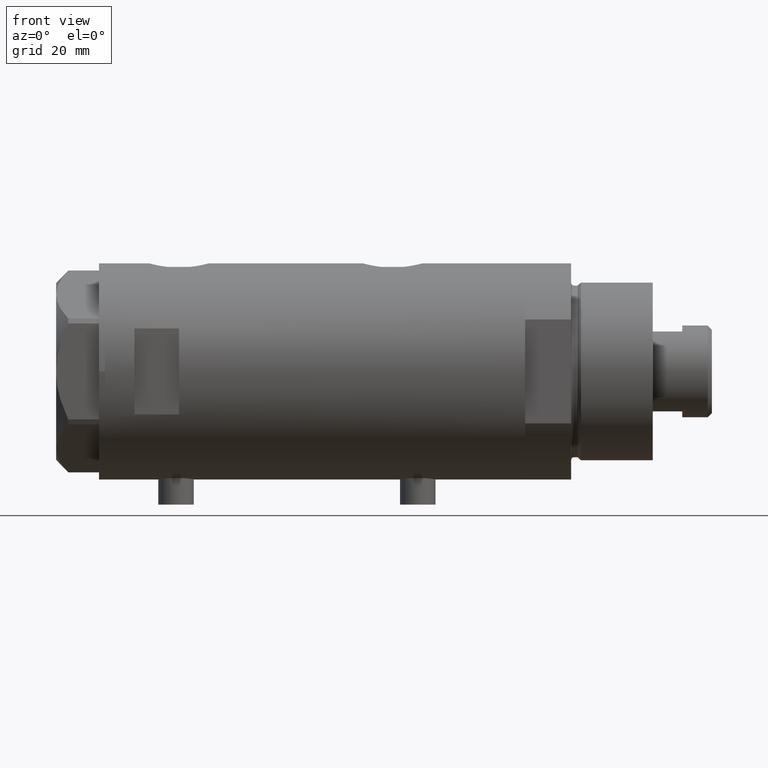
[diagram: clean part render]
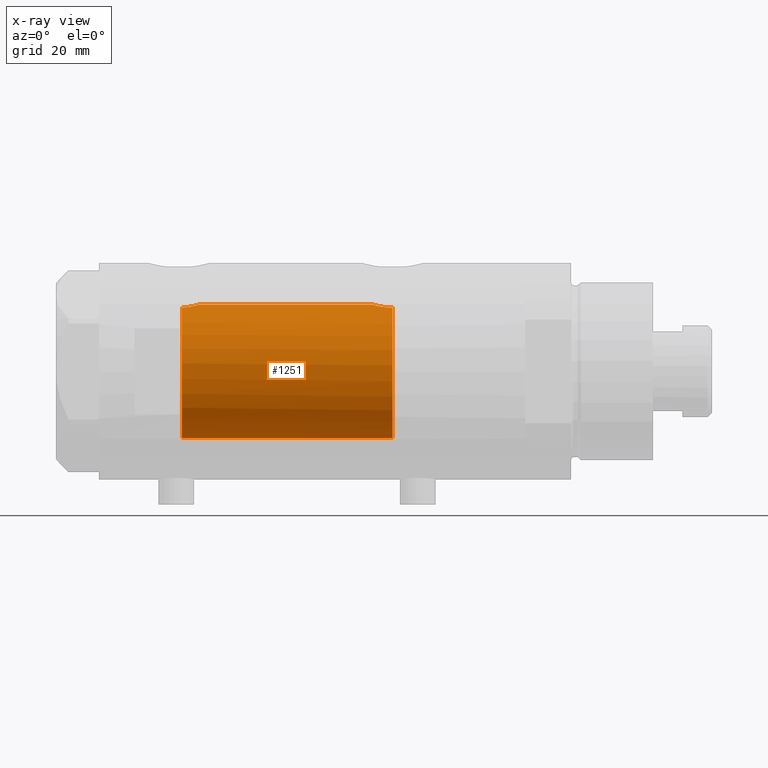
[diagram: x-ray — body ghosted, one internal face saturated and labeled with its STEP entity id]
A machine part, front view, then the same camera in x-ray: the body is ghosted and one INTERNAL B-rep face — a face not visible from any outside direction — is saturated and labeled: STEP entity #1251.
In plain terms, the highlighted cylindrical surface (partial cylindrical patch) has radius 22.5 mm, axis along (1, 0, -0).
Its self-contained STEP definition (entity closure, byte-faithful):
#11 = CARTESIAN_POINT ( 'NONE',  ( 22.41838729966077182, -1.923945741267794718, 39.67953118595340811 ) ) ;
#55 = CARTESIAN_POINT ( 'NONE',  ( 21.80246547822149239, -5.562416037700068649, 42.43858628205821049 ) ) ;
#100 = FACE_OUTER_BOUND ( 'NONE', #4734, .T. ) ;
#121 = EDGE_CURVE ( 'NONE', #3836, #2532, #902, .T. ) ;
#122 = CYLINDRICAL_SURFACE ( 'NONE', #4314, 22.50000000000000355 ) ;
#178 = CARTESIAN_POINT ( 'NONE',  ( 21.85557760450273079, -5.347779544816341435, -22.33530284772028551 ) ) ;
#199 = CARTESIAN_POINT ( 'NONE',  ( -22.47718698759301148, -1.044180983668934415, 44.68786394352321878 ) ) ;
#212 = EDGE_CURVE ( 'NONE', #1202, #2532, #3261, .T. ) ;
#216 = VECTOR ( 'NONE', #1555, 1000.000000000000000 ) ;
#344 = CARTESIAN_POINT ( 'NONE',  ( 21.55747828655794507, -6.444296957919024571, 44.58952509780952056 ) ) ;
#372 = CARTESIAN_POINT ( 'NONE',  ( 22.45982135096091170, -1.357617207441330409, 39.53364426403783938 ) ) ;
#387 = CARTESIAN_POINT ( 'NONE',  ( -22.50000000000000355, 3.061617244220330846E-16, 44.47499999999999432 ) ) ;
#400 = CARTESIAN_POINT ( 'NONE',  ( 21.58054822171800424, -6.366927345060005905, -24.45902244069208464 ) ) ;
#512 = CARTESIAN_POINT ( 'NONE',  ( 21.76737372098157763, -5.695831585513579931, -22.87347891606892247 ) ) ;
#540 = CARTESIAN_POINT ( 'NONE',  ( -22.50000000000000355, 0.000000000000000000, 70.97499999999998010 ) ) ;
#545 = CARTESIAN_POINT ( 'NONE',  ( 22.49690699366423630, -0.4310528819996874428, -19.60555249859412896 ) ) ;
#550 = VERTEX_POINT ( 'NONE', #387 ) ;
#563 = CARTESIAN_POINT ( 'NONE',  ( -22.44994432064365242, -1.500000000000010658, 44.97500000000000142 ) ) ;
#565 = CARTESIAN_POINT ( 'NONE',  ( 21.79602751566979180, -5.585535159907483838, -22.69020197735673605 ) ) ;
#763 = ORIENTED_EDGE ( 'NONE', *, *, #1005, .F. ) ;
#781 = CARTESIAN_POINT ( 'NONE',  ( 22.50000000000000355, 0.000000000000000000, 39.39499999999999602 ) ) ;
#826 = DIRECTION ( 'NONE',  ( 0.000000000000000000, 0.000000000000000000, -1.000000000000000000 ) ) ;
#872 = CARTESIAN_POINT ( 'NONE',  ( 22.43844456282249666, -1.716722304487074080, -19.80814599255653263 ) ) ;
#902 = CIRCLE ( 'NONE', #1595, 22.50000000000000355 ) ;
#950 = CARTESIAN_POINT ( 'NONE',  ( 22.47508397315213813, -1.079737406574096115, -19.68058251353130927 ) ) ;
#1005 = EDGE_CURVE ( 'NONE', #3836, #550, #3547, .T. ) ;
#1032 = ORIENTED_EDGE ( 'NONE', *, *, #4196, .T. ) ;
#1056 = ORIENTED_EDGE ( 'NONE', *, *, #212, .F. ) ;
#1202 = VERTEX_POINT ( 'NONE', #4039 ) ;
#1251 = ADVANCED_FACE ( 'NONE', ( #100 ), #122, .F. ) ;
#1293 = CARTESIAN_POINT ( 'NONE',  ( 22.25875518649490203, -3.305696985817204059, -20.46958010501983694 ) ) ;
#1326 = CARTESIAN_POINT ( 'NONE',  ( -22.50000000000000711, -0.1337055225816306814, 44.47499999999999432 ) ) ;
#1334 = ORIENTED_EDGE ( 'NONE', *, *, #1926, .T. ) ;
#1555 = DIRECTION ( 'NONE',  ( -0.000000000000000000, -0.000000000000000000, -1.000000000000000000 ) ) ;
#1574 = DIRECTION ( 'NONE',  ( -1.000000000000000000, 0.000000000000000000, 0.000000000000000000 ) ) ;
#1595 = AXIS2_PLACEMENT_3D ( 'NONE', #4480, #3670, #2589 ) ;
#1651 = CARTESIAN_POINT ( 'NONE',  ( 22.48448975507856673, -0.8627579744204257883, -19.64820172378661312 ) ) ;
#1672 = CARTESIAN_POINT ( 'NONE',  ( -22.49055119298212091, -0.6642057183733680592, 44.56115305361895906 ) ) ;
#1737 = CARTESIAN_POINT ( 'NONE',  ( -22.50000000000000355, 0.000000000000000000, -26.17500000000000426 ) ) ;
#1765 = CARTESIAN_POINT ( 'NONE',  ( 21.53958216864941733, -6.503568251352486840, 44.97500000000000142 ) ) ;
#1769 = CIRCLE ( 'NONE', #4471, 22.50000000000000355 ) ;
#1815 = CARTESIAN_POINT ( 'NONE',  ( 22.03004750576871729, -4.584392313773047789, 41.23896497621451118 ) ) ;
#1826 = LINE ( 'NONE', #3312, #3439 ) ;
#1846 = CARTESIAN_POINT ( 'NONE',  ( 22.19872433573121029, -3.673198495424858656, 40.51223143248277836 ) ) ;
#1872 = ORIENTED_EDGE ( 'NONE', *, *, #1953, .F. ) ;
#1890 = CARTESIAN_POINT ( 'NONE',  ( 21.52981735982749711, -6.536420260328986487, -25.30462480407472370 ) ) ;
#1926 = EDGE_CURVE ( 'NONE', #2818, #3657, #1769, .T. ) ;
#1953 = EDGE_CURVE ( 'NONE', #2818, #3091, #2151, .T. ) ;
#2016 = CARTESIAN_POINT ( 'NONE',  ( 21.68753676189997748, -5.992345198295755182, -23.44827232579068266 ) ) ;
#2035 = CARTESIAN_POINT ( 'NONE',  ( -22.46419909496995260, -1.286654073380669949, 44.81499055503548590 ) ) ;
#2151 = B_SPLINE_CURVE_WITH_KNOTS ( 'NONE', 3,
 ( #2592, #4071, #1890, #400, #3370, #2016, #2401, #512, #565, #178, #4217, #3127, #3182, #4597, #4558, #1293, #3157, #4193, #872, #950, #1651, #545, #2737, #2762 ),
 .UNSPECIFIED., .F., .F.,
 ( 4, 2, 2, 2, 2, 2, 2, 2, 2, 2, 2, 4 ),
 ( 0.01034583194474684477, 0.01163831905076681203, 0.01293080615678677929, 0.01357704970979676379, 0.01422329326280675002, 0.01486953681581673452, 0.01551578036882671902, 0.01680826747484669842, 0.01810075458086667782, 0.01939324168688665723, 0.02003948523989664693, 0.02068572879290663316 ),
 .UNSPECIFIED. ) ;
#2183 = CARTESIAN_POINT ( 'NONE',  ( 22.40145249794126059, -2.111617392236897928, 39.73995543481973414 ) ) ;
#2253 = CARTESIAN_POINT ( 'NONE',  ( 21.97180182460413889, -4.853116730831955827, 41.51487939335086708 ) ) ;
#2339 = DIRECTION ( 'NONE',  ( -0.000000000000000000, -0.000000000000000000, -1.000000000000000000 ) ) ;
#2401 = CARTESIAN_POINT ( 'NONE',  ( 21.71318796968428444, -5.899027407341884910, -23.25198536342958988 ) ) ;
#2532 = VERTEX_POINT ( 'NONE', #1765 ) ;
#2570 = CARTESIAN_POINT ( 'NONE',  ( 22.34502592404423993, -2.661921217589553024, 39.94475867852116124 ) ) ;
#2589 = DIRECTION ( 'NONE',  ( 1.000000000000000000, 0.000000000000000000, 0.000000000000000000 ) ) ;
#2592 = CARTESIAN_POINT ( 'NONE',  ( 21.51635656889892800, -6.580000000000002736, -26.17499999999999716 ) ) ;
#2622 = CARTESIAN_POINT ( 'NONE',  ( 22.44752031034920847, -1.547413406105165867, 39.57656217857970660 ) ) ;
#2644 = CARTESIAN_POINT ( 'NONE',  ( 22.48961206562542259, -0.7836756559690483126, 39.43027653274376121 ) ) ;
#2737 = CARTESIAN_POINT ( 'NONE',  ( 22.50000000000000711, -0.2154191524768929167, -19.59499999999999886 ) ) ;
#2762 = CARTESIAN_POINT ( 'NONE',  ( 22.50000000000000355, 8.058593785575293352E-16, -19.59499999999999531 ) ) ;
#2787 = CARTESIAN_POINT ( 'NONE',  ( -22.50000000000000355, 3.061617244220330846E-16, 44.47499999999999432 ) ) ;
#2818 = VERTEX_POINT ( 'NONE', #3188 ) ;
#3011 = CARTESIAN_POINT ( 'NONE',  ( 22.14407575385478566, -3.989443360685410944, 40.73872562971259015 ) ) ;
#3037 = CARTESIAN_POINT ( 'NONE',  ( 22.50000000000000355, 8.058593785575293352E-16, -19.59499999999999531 ) ) ;
#3091 = VERTEX_POINT ( 'NONE', #3037 ) ;
#3127 = CARTESIAN_POINT ( 'NONE',  ( 21.94965745907477839, -4.947937303812826038, -21.83215039555711456 ) ) ;
#3156 = CARTESIAN_POINT ( 'NONE',  ( -22.49403986544133716, -0.5345788548553219721, 44.52912780930143555 ) ) ;
#3157 = CARTESIAN_POINT ( 'NONE',  ( 22.31324851815826094, -2.920315458573306433, -20.26292883542265244 ) ) ;
#3182 = CARTESIAN_POINT ( 'NONE',  ( 21.98210460142358258, -4.802207463187401437, -21.67152004334174009 ) ) ;
#3188 = CARTESIAN_POINT ( 'NONE',  ( 21.51635656889892800, -6.580000000000002736, -26.17499999999999716 ) ) ;
#3197 = ORIENTED_EDGE ( 'NONE', *, *, #121, .T. ) ;
#3247 = CARTESIAN_POINT ( 'NONE',  ( -22.44994432064365242, -1.500000000000010658, 44.97500000000000142 ) ) ;
#3261 = B_SPLINE_CURVE_WITH_KNOTS ( 'NONE', 3,
 ( #781, #3742, #2644, #372, #2622, #11, #2183, #2570, #4095, #4045, #1846, #3011, #3394, #1815, #2253, #3720, #55, #4118, #4503, #3649, #344, #3327 ),
 .UNSPECIFIED., .F., .F.,
 ( 4, 2, 2, 2, 2, 2, 2, 2, 2, 2, 4 ),
 ( 0.000000000000000000, 0.001167753031984902464, 0.001751629547977353804, 0.002335506063969804928, 0.003503259095954700236, 0.004087135611947153094, 0.004671012127939605518, 0.005838765159924511235, 0.007006518191909416951, 0.008174271223894323535, 0.009342024255879228384 ),
 .UNSPECIFIED. ) ;
#3312 = CARTESIAN_POINT ( 'NONE',  ( 22.50000000000000355, 2.755455298081545172E-15, 70.97499999999998010 ) ) ;
#3327 = CARTESIAN_POINT ( 'NONE',  ( 21.53958216864941733, -6.503568251352486840, 44.97500000000000142 ) ) ;
#3370 = CARTESIAN_POINT ( 'NONE',  ( 21.61760927586799497, -6.241696587716372591, -24.04779459237285266 ) ) ;
#3394 = CARTESIAN_POINT ( 'NONE',  ( 22.11568811446341343, -4.143519122923675191, 40.85980504416087911 ) ) ;
#3439 = VECTOR ( 'NONE', #3640, 1000.000000000000000 ) ;
#3538 = EDGE_CURVE ( 'NONE', #550, #3657, #4553, .T. ) ;
#3547 = B_SPLINE_CURVE_WITH_KNOTS ( 'NONE', 3,
 ( #563, #2035, #199, #1672, #3156, #4629, #1326, #2787 ),
 .UNSPECIFIED., .F., .F.,
 ( 4, 2, 2, 4 ),
 ( 0.006220300178549096302, 0.007021237910897109094, 0.007421706777071115056, 0.007822175643245121018 ),
 .UNSPECIFIED. ) ;
#3640 = DIRECTION ( 'NONE',  ( -0.000000000000000000, -0.000000000000000000, -1.000000000000000000 ) ) ;
#3649 = CARTESIAN_POINT ( 'NONE',  ( 21.58601844322714314, -6.349099877921657864, 44.20404811410317336 ) ) ;
#3657 = VERTEX_POINT ( 'NONE', #1737 ) ;
#3670 = DIRECTION ( 'NONE',  ( 0.000000000000000000, 0.000000000000000000, 1.000000000000000000 ) ) ;
#3720 = CARTESIAN_POINT ( 'NONE',  ( 21.85824266975972563, -5.341352339310158293, 42.11295740361616424 ) ) ;
#3742 = CARTESIAN_POINT ( 'NONE',  ( 22.50000000000000711, -0.3950131823107579376, 39.39500000000001023 ) ) ;
#3745 = CARTESIAN_POINT ( 'NONE',  ( 0.000000000000000000, 0.000000000000000000, -26.17500000000000426 ) ) ;
#3836 = VERTEX_POINT ( 'NONE', #3247 ) ;
#4039 = CARTESIAN_POINT ( 'NONE',  ( 22.50000000000000355, 0.000000000000000000, 39.39499999999999602 ) ) ;
#4045 = CARTESIAN_POINT ( 'NONE',  ( 22.22503367403959729, -3.510871893734218929, 40.40655767831966472 ) ) ;
#4071 = CARTESIAN_POINT ( 'NONE',  ( 21.51635656889892800, -6.580000000000002736, -25.74325681860746329 ) ) ;
#4095 = CARTESIAN_POINT ( 'NONE',  ( 22.30010606974974152, -3.011418659624945704, 40.11178901685799758 ) ) ;
#4118 = CARTESIAN_POINT ( 'NONE',  ( 21.70285280737213540, -5.939204755440072425, 43.11623435135584259 ) ) ;
#4193 = CARTESIAN_POINT ( 'NONE',  ( 22.40278435593407380, -2.127100118045534227, -19.93350395174202561 ) ) ;
#4196 = EDGE_CURVE ( 'NONE', #1202, #3091, #1826, .T. ) ;
#4217 = CARTESIAN_POINT ( 'NONE',  ( 21.88647530142791808, -5.220320393727296171, -22.16368086085048716 ) ) ;
#4314 = AXIS2_PLACEMENT_3D ( 'NONE', #4571, #2339, #1574 ) ;
#4432 = ORIENTED_EDGE ( 'NONE', *, *, #3538, .F. ) ;
#4471 = AXIS2_PLACEMENT_3D ( 'NONE', #3745, #826, #4505 ) ;
#4480 = CARTESIAN_POINT ( 'NONE',  ( 0.000000000000000000, 0.000000000000000000, 44.97500000000000142 ) ) ;
#4503 = CARTESIAN_POINT ( 'NONE',  ( 21.65869182728110331, -6.096583454856817852, 43.46920471307960554 ) ) ;
#4505 = DIRECTION ( 'NONE',  ( -1.000000000000000000, 0.000000000000000000, 0.000000000000000000 ) ) ;
#4553 = LINE ( 'NONE', #540, #216 ) ;
#4558 = CARTESIAN_POINT ( 'NONE',  ( 22.14149984669489513, -4.016690124115200433, -20.94569324031265722 ) ) ;
#4571 = CARTESIAN_POINT ( 'NONE',  ( 0.000000000000000000, 0.000000000000000000, 70.97499999999998010 ) ) ;
#4597 = CARTESIAN_POINT ( 'NONE',  ( 22.07839819281284477, -4.346355962099935688, -21.21615912649136249 ) ) ;
#4629 = CARTESIAN_POINT ( 'NONE',  ( -22.49878002430316570, -0.2692609109014518776, 44.48591103269658475 ) ) ;
#4734 = EDGE_LOOP ( 'NONE', ( #1056, #1032, #1872, #1334, #4432, #763, #3197 ) ) ;